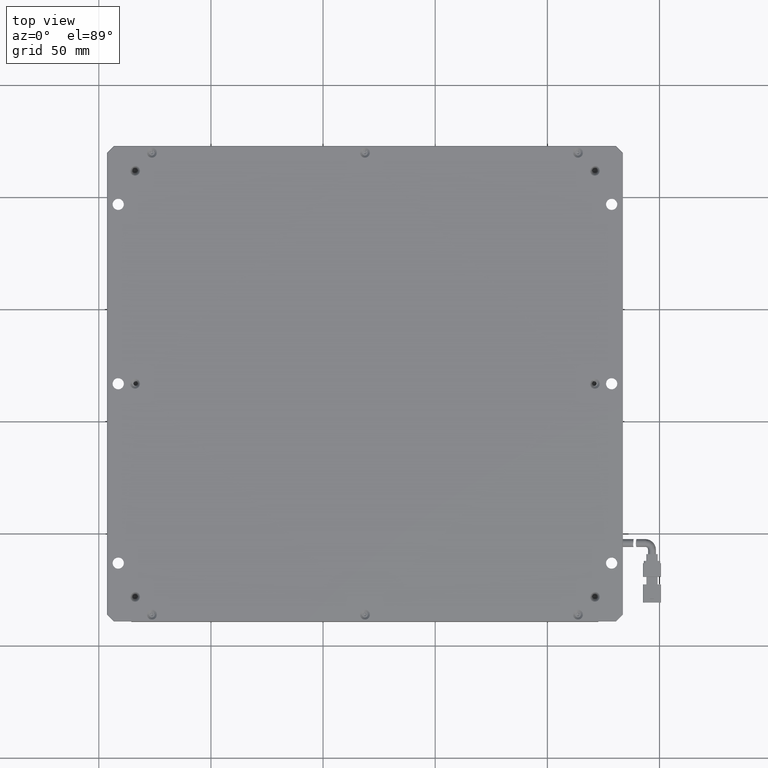
[diagram: clean part render]
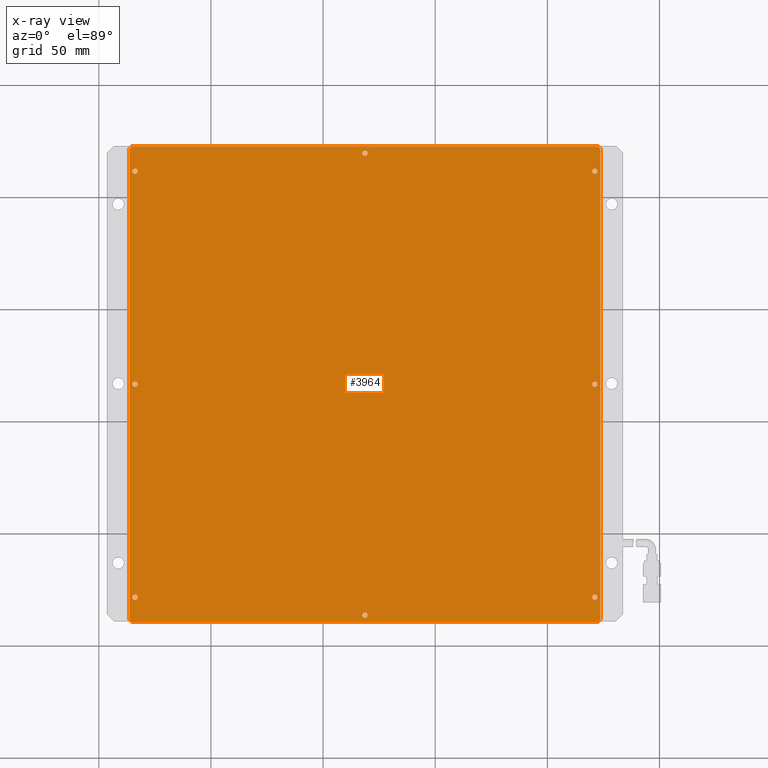
[diagram: x-ray — body ghosted, one internal face saturated and labeled with its STEP entity id]
A machine part, top view, then the same camera in x-ray: the body is ghosted and one INTERNAL B-rep face — a face not visible from any outside direction — is saturated and labeled: STEP entity #3964.
In plain terms, the highlighted planar face has unit normal (0, 0, -1).
Its self-contained STEP definition (entity closure, byte-faithful):
#4 = VERTEX_POINT ( 'NONE', #21319 ) ;
#84 = PLANE ( 'NONE',  #10973 ) ;
#127 = EDGE_CURVE ( 'NONE', #21207, #11545, #3713, .T. ) ;
#207 = ORIENTED_EDGE ( 'NONE', *, *, #2324, .F. ) ;
#365 = ORIENTED_EDGE ( 'NONE', *, *, #14349, .F. ) ;
#458 = CARTESIAN_POINT ( 'NONE',  ( -86.33424941752385000, -138.3787539827808400, -13.00000000002364500 ) ) ;
#491 = EDGE_LOOP ( 'NONE', ( #17542, #6930 ) ) ;
#540 = ORIENTED_EDGE ( 'NONE', *, *, #7297, .F. ) ;
#644 = AXIS2_PLACEMENT_3D ( 'NONE', #2061, #9437, #11169 ) ;
#785 = DIRECTION ( 'NONE',  ( -0.0000000000000000000, -0.0000000000000000000, 1.000000000000000000 ) ) ;
#798 = EDGE_CURVE ( 'NONE', #20414, #19845, #9162, .T. ) ;
#878 = DIRECTION ( 'NONE',  ( 1.000000000000000000, 0.0000000000000000000, 0.0000000000000000000 ) ) ;
#933 = FACE_BOUND ( 'NONE', #22066, .T. ) ;
#1193 = FACE_BOUND ( 'NONE', #8259, .T. ) ;
#1230 = AXIS2_PLACEMENT_3D ( 'NONE', #4122, #21245, #7559 ) ;
#1307 = ORIENTED_EDGE ( 'NONE', *, *, #6660, .F. ) ;
#1434 = CIRCLE ( 'NONE', #16487, 1.199999999999992600 ) ;
#1467 = CARTESIAN_POINT ( 'NONE',  ( 121.1657505824761500, -128.3787539827808100, -13.00000000002364500 ) ) ;
#1514 = EDGE_CURVE ( 'NONE', #9319, #11531, #12898, .T. ) ;
#1588 = DIRECTION ( 'NONE',  ( -0.0000000000000000000, -0.0000000000000000000, 1.000000000000000000 ) ) ;
#1750 = FACE_BOUND ( 'NONE', #491, .T. ) ;
#1878 = VECTOR ( 'NONE', #10986, 1000.000000000000000 ) ;
#1955 = AXIS2_PLACEMENT_3D ( 'NONE', #13266, #15007, #20400 ) ;
#1968 = CARTESIAN_POINT ( 'NONE',  ( 19.86575058247613900, -136.3787539827807800, -13.00000000002364500 ) ) ;
#1978 = AXIS2_PLACEMENT_3D ( 'NONE', #16757, #18547, #13225 ) ;
#2044 = EDGE_CURVE ( 'NONE', #13668, #18893, #10382, .T. ) ;
#2047 = AXIS2_PLACEMENT_3D ( 'NONE', #21700, #13224, #9476 ) ;
#2061 = CARTESIAN_POINT ( 'NONE',  ( -83.83424941752386400, 61.62124601721920000, -13.00000000002364500 ) ) ;
#2324 = EDGE_CURVE ( 'NONE', #16106, #20766, #3310, .T. ) ;
#2483 = ORIENTED_EDGE ( 'NONE', *, *, #7981, .F. ) ;
#2631 = EDGE_LOOP ( 'NONE', ( #9702, #365 ) ) ;
#2638 = CIRCLE ( 'NONE', #13916, 1.199999999999992600 ) ;
#2665 = CARTESIAN_POINT ( 'NONE',  ( 123.6657505824761400, -139.3787539827808400, -13.00000000002364500 ) ) ;
#2817 = CARTESIAN_POINT ( 'NONE',  ( -85.33424941752389300, 72.62124601721919200, -13.00000000002364500 ) ) ;
#2819 = DIRECTION ( 'NONE',  ( 0.0000000000000000000, -1.000000000000000000, 0.0000000000000000000 ) ) ;
#2936 = CARTESIAN_POINT ( 'NONE',  ( 123.6657505824761500, -138.3787539827808400, -13.00000000002364500 ) ) ;
#2960 = EDGE_CURVE ( 'NONE', #19621, #7441, #10603, .T. ) ;
#3239 = ORIENTED_EDGE ( 'NONE', *, *, #11713, .F. ) ;
#3310 = CIRCLE ( 'NONE', #644, 1.199999999999992600 ) ;
#3338 = CARTESIAN_POINT ( 'NONE',  ( 122.6657505824761800, -139.3787539827808100, -13.00000000002364500 ) ) ;
#3440 = CARTESIAN_POINT ( 'NONE',  ( 18.66575058247614600, 69.62124601721919200, -13.00000000002364500 ) ) ;
#3490 = CIRCLE ( 'NONE', #20524, 1.199999999999992600 ) ;
#3592 = VECTOR ( 'NONE', #2819, 1000.000000000000000 ) ;
#3631 = DIRECTION ( 'NONE',  ( 0.0000000000000000000, 0.0000000000000000000, -1.000000000000000000 ) ) ;
#3640 = AXIS2_PLACEMENT_3D ( 'NONE', #3440, #1588, #15659 ) ;
#3713 = CIRCLE ( 'NONE', #2047, 1.199999999999992600 ) ;
#3738 = CARTESIAN_POINT ( 'NONE',  ( -86.33424941752387800, 72.62124601721919200, -13.00000000002364500 ) ) ;
#3964 = ADVANCED_FACE ( 'NONE', ( #6433, #933, #20255, #1193, #13823, #14611, #9172, #1750, #4501 ), #84, .F. ) ;
#3965 = EDGE_CURVE ( 'NONE', #11545, #21207, #7503, .T. ) ;
#4122 = CARTESIAN_POINT ( 'NONE',  ( 18.66575058247614600, -136.3787539827807800, -13.00000000002364500 ) ) ;
#4203 = CARTESIAN_POINT ( 'NONE',  ( -83.83424941752386400, -128.3787539827808100, -13.00000000002364500 ) ) ;
#4287 = DIRECTION ( 'NONE',  ( -0.0000000000000000000, -0.0000000000000000000, 1.000000000000000000 ) ) ;
#4501 = FACE_BOUND ( 'NONE', #20303, .T. ) ;
#4524 = ORIENTED_EDGE ( 'NONE', *, *, #16328, .F. ) ;
#4672 = CIRCLE ( 'NONE', #8793, 1.199999999999992600 ) ;
#4866 = LINE ( 'NONE', #9912, #7046 ) ;
#5044 = CARTESIAN_POINT ( 'NONE',  ( 17.46575058247615400, 69.62124601721919200, -13.00000000002364500 ) ) ;
#5112 = CARTESIAN_POINT ( 'NONE',  ( 122.6657505824761200, -139.3787539827808400, -13.00000000002364500 ) ) ;
#5323 = DIRECTION ( 'NONE',  ( -0.0000000000000000000, -0.0000000000000000000, 1.000000000000000000 ) ) ;
#5514 = DIRECTION ( 'NONE',  ( -0.0000000000000000000, 1.000000000000000000, -0.0000000000000000000 ) ) ;
#5581 = EDGE_LOOP ( 'NONE', ( #7174, #21041 ) ) ;
#5655 = CARTESIAN_POINT ( 'NONE',  ( 123.6657505824761400, 72.62124601721919200, -13.00000000002364500 ) ) ;
#6198 = VERTEX_POINT ( 'NONE', #11804 ) ;
#6298 = VECTOR ( 'NONE', #5514, 1000.000000000000000 ) ;
#6433 = FACE_OUTER_BOUND ( 'NONE', #6512, .T. ) ;
#6473 = EDGE_CURVE ( 'NONE', #9319, #19845, #7963, .T. ) ;
#6498 = VERTEX_POINT ( 'NONE', #18045 ) ;
#6512 = EDGE_LOOP ( 'NONE', ( #16571, #540, #22331, #22520, #10871, #12066, #8823, #1307 ) ) ;
#6535 = DIRECTION ( 'NONE',  ( -0.0000000000000000000, -0.0000000000000000000, 1.000000000000000000 ) ) ;
#6660 = EDGE_CURVE ( 'NONE', #7040, #11531, #18544, .T. ) ;
#6685 = CARTESIAN_POINT ( 'NONE',  ( -85.03424941752385300, -33.37875398278074400, -13.00000000002364500 ) ) ;
#6716 = VERTEX_POINT ( 'NONE', #5044 ) ;
#6854 = AXIS2_PLACEMENT_3D ( 'NONE', #19036, #5323, #7043 ) ;
#6930 = ORIENTED_EDGE ( 'NONE', *, *, #3965, .F. ) ;
#7033 = EDGE_CURVE ( 'NONE', #20414, #16935, #17158, .T. ) ;
#7040 = VERTEX_POINT ( 'NONE', #20957 ) ;
#7043 = DIRECTION ( 'NONE',  ( 1.000000000000000000, 0.0000000000000000000, 0.0000000000000000000 ) ) ;
#7046 = VECTOR ( 'NONE', #14861, 1000.000000000000000 ) ;
#7049 = CIRCLE ( 'NONE', #20682, 1.199999999999992600 ) ;
#7174 = ORIENTED_EDGE ( 'NONE', *, *, #2044, .F. ) ;
#7297 = EDGE_CURVE ( 'NONE', #20131, #6498, #19018, .T. ) ;
#7340 = CIRCLE ( 'NONE', #17605, 1.199999999999992600 ) ;
#7441 = VERTEX_POINT ( 'NONE', #15114 ) ;
#7503 = CIRCLE ( 'NONE', #17223, 1.199999999999992600 ) ;
#7559 = DIRECTION ( 'NONE',  ( 1.000000000000000000, 0.0000000000000000000, 0.0000000000000000000 ) ) ;
#7963 = LINE ( 'NONE', #2665, #22302 ) ;
#7981 = EDGE_CURVE ( 'NONE', #10184, #6198, #7340, .T. ) ;
#8205 = DIRECTION ( 'NONE',  ( 1.000000000000000000, 0.0000000000000000000, 0.0000000000000000000 ) ) ;
#8259 = EDGE_LOOP ( 'NONE', ( #2483, #8332 ) ) ;
#8332 = ORIENTED_EDGE ( 'NONE', *, *, #13460, .F. ) ;
#8434 = DIRECTION ( 'NONE',  ( 1.000000000000000000, 0.0000000000000000000, 0.0000000000000000000 ) ) ;
#8780 = ORIENTED_EDGE ( 'NONE', *, *, #15611, .F. ) ;
#8793 = AXIS2_PLACEMENT_3D ( 'NONE', #11290, #785, #878 ) ;
#8823 = ORIENTED_EDGE ( 'NONE', *, *, #1514, .T. ) ;
#8836 = LINE ( 'NONE', #2817, #16180 ) ;
#9162 = LINE ( 'NONE', #458, #21565 ) ;
#9172 = FACE_BOUND ( 'NONE', #14804, .T. ) ;
#9319 = VERTEX_POINT ( 'NONE', #5112 ) ;
#9437 = DIRECTION ( 'NONE',  ( -0.0000000000000000000, -0.0000000000000000000, 1.000000000000000000 ) ) ;
#9476 = DIRECTION ( 'NONE',  ( 1.000000000000000000, 0.0000000000000000000, 0.0000000000000000000 ) ) ;
#9563 = DIRECTION ( 'NONE',  ( -0.7071067811865378000, -0.7071067811865573400, 0.0000000000000000000 ) ) ;
#9702 = ORIENTED_EDGE ( 'NONE', *, *, #2960, .F. ) ;
#9912 = CARTESIAN_POINT ( 'NONE',  ( 123.6657505824761400, 71.62124601721922100, -13.00000000002364500 ) ) ;
#10159 = DIRECTION ( 'NONE',  ( 1.000000000000000000, 0.0000000000000000000, 0.0000000000000000000 ) ) ;
#10184 = VERTEX_POINT ( 'NONE', #14755 ) ;
#10382 = CIRCLE ( 'NONE', #1955, 1.199999999999992600 ) ;
#10603 = CIRCLE ( 'NONE', #6854, 1.199999999999992600 ) ;
#10871 = ORIENTED_EDGE ( 'NONE', *, *, #798, .T. ) ;
#10917 = VERTEX_POINT ( 'NONE', #14808 ) ;
#10973 = AXIS2_PLACEMENT_3D ( 'NONE', #17461, #3631, #12472 ) ;
#10986 = DIRECTION ( 'NONE',  ( 1.000000000000000000, 0.0000000000000000000, 0.0000000000000000000 ) ) ;
#11042 = CIRCLE ( 'NONE', #17322, 1.199999999999992600 ) ;
#11169 = DIRECTION ( 'NONE',  ( 1.000000000000000000, 0.0000000000000000000, 0.0000000000000000000 ) ) ;
#11233 = DIRECTION ( 'NONE',  ( 1.000000000000000000, 0.0000000000000000000, 0.0000000000000000000 ) ) ;
#11290 = CARTESIAN_POINT ( 'NONE',  ( -83.83424941752386400, 61.62124601721920000, -13.00000000002364500 ) ) ;
#11326 = DIRECTION ( 'NONE',  ( 1.000000000000000000, 0.0000000000000000000, 0.0000000000000000000 ) ) ;
#11416 = EDGE_CURVE ( 'NONE', #7040, #6498, #4866, .T. ) ;
#11531 = VERTEX_POINT ( 'NONE', #2936 ) ;
#11545 = VERTEX_POINT ( 'NONE', #6685 ) ;
#11713 = EDGE_CURVE ( 'NONE', #14659, #4, #7049, .T. ) ;
#11804 = CARTESIAN_POINT ( 'NONE',  ( 119.9657505824761600, -128.3787539827808100, -13.00000000002364500 ) ) ;
#11885 = DIRECTION ( 'NONE',  ( 1.000000000000000000, 0.0000000000000000000, 0.0000000000000000000 ) ) ;
#12066 = ORIENTED_EDGE ( 'NONE', *, *, #6473, .F. ) ;
#12142 = DIRECTION ( 'NONE',  ( 0.7071067811865378000, 0.7071067811865573400, 0.0000000000000000000 ) ) ;
#12151 = CARTESIAN_POINT ( 'NONE',  ( -82.63424941752387600, 61.62124601721920000, -13.00000000002364500 ) ) ;
#12323 = DIRECTION ( 'NONE',  ( -0.0000000000000000000, -0.0000000000000000000, 1.000000000000000000 ) ) ;
#12472 = DIRECTION ( 'NONE',  ( 1.000000000000000000, 0.0000000000000000000, 0.0000000000000000000 ) ) ;
#12608 = CIRCLE ( 'NONE', #18582, 1.199999999999992600 ) ;
#12707 = VERTEX_POINT ( 'NONE', #21239 ) ;
#12898 = LINE ( 'NONE', #3338, #15624 ) ;
#13224 = DIRECTION ( 'NONE',  ( -0.0000000000000000000, -0.0000000000000000000, 1.000000000000000000 ) ) ;
#13225 = DIRECTION ( 'NONE',  ( 1.000000000000000000, 0.0000000000000000000, 0.0000000000000000000 ) ) ;
#13266 = CARTESIAN_POINT ( 'NONE',  ( 121.1657505824761500, 61.62124601721920000, -13.00000000002364500 ) ) ;
#13297 = CARTESIAN_POINT ( 'NONE',  ( -85.33424941752389300, -139.3787539827807800, -13.00000000002364500 ) ) ;
#13363 = CIRCLE ( 'NONE', #1230, 1.199999999999992600 ) ;
#13384 = DIRECTION ( 'NONE',  ( -0.0000000000000000000, -0.0000000000000000000, 1.000000000000000000 ) ) ;
#13460 = EDGE_CURVE ( 'NONE', #6198, #10184, #12608, .T. ) ;
#13668 = VERTEX_POINT ( 'NONE', #17309 ) ;
#13744 = EDGE_LOOP ( 'NONE', ( #18500, #3239 ) ) ;
#13823 = FACE_BOUND ( 'NONE', #13744, .T. ) ;
#13916 = AXIS2_PLACEMENT_3D ( 'NONE', #16914, #13384, #10159 ) ;
#14047 = CARTESIAN_POINT ( 'NONE',  ( 119.9657505824761600, -33.37875398278074400, -13.00000000002364500 ) ) ;
#14160 = DIRECTION ( 'NONE',  ( 1.000000000000000000, 0.0000000000000000000, 0.0000000000000000000 ) ) ;
#14349 = EDGE_CURVE ( 'NONE', #7441, #19621, #13363, .T. ) ;
#14526 = DIRECTION ( 'NONE',  ( -0.0000000000000000000, -0.0000000000000000000, 1.000000000000000000 ) ) ;
#14542 = CARTESIAN_POINT ( 'NONE',  ( -85.03424941752385300, -128.3787539827808100, -13.00000000002364500 ) ) ;
#14611 = FACE_BOUND ( 'NONE', #5581, .T. ) ;
#14659 = VERTEX_POINT ( 'NONE', #14047 ) ;
#14674 = DIRECTION ( 'NONE',  ( -1.000000000000000000, -0.0000000000000000000, -0.0000000000000000000 ) ) ;
#14755 = CARTESIAN_POINT ( 'NONE',  ( 122.3657505824761500, -128.3787539827808100, -13.00000000002364500 ) ) ;
#14804 = EDGE_LOOP ( 'NONE', ( #8780, #22243 ) ) ;
#14808 = CARTESIAN_POINT ( 'NONE',  ( 19.86575058247613900, 69.62124601721919200, -13.00000000002364500 ) ) ;
#14861 = DIRECTION ( 'NONE',  ( -0.7071067811865573400, 0.7071067811865378000, -0.0000000000000000000 ) ) ;
#15007 = DIRECTION ( 'NONE',  ( -0.0000000000000000000, -0.0000000000000000000, 1.000000000000000000 ) ) ;
#15114 = CARTESIAN_POINT ( 'NONE',  ( 17.46575058247615400, -136.3787539827807800, -13.00000000002364500 ) ) ;
#15250 = EDGE_CURVE ( 'NONE', #6716, #10917, #11042, .T. ) ;
#15450 = CARTESIAN_POINT ( 'NONE',  ( -86.33424941752386400, 71.62124601721917800, -13.00000000002364500 ) ) ;
#15475 = ORIENTED_EDGE ( 'NONE', *, *, #20404, .F. ) ;
#15611 = EDGE_CURVE ( 'NONE', #12707, #17463, #1434, .T. ) ;
#15615 = CARTESIAN_POINT ( 'NONE',  ( 119.9657505824761600, 61.62124601721920000, -13.00000000002364500 ) ) ;
#15624 = VECTOR ( 'NONE', #12142, 1000.000000000000000 ) ;
#15659 = DIRECTION ( 'NONE',  ( 1.000000000000000000, 0.0000000000000000000, 0.0000000000000000000 ) ) ;
#15787 = CARTESIAN_POINT ( 'NONE',  ( -86.33424941752386400, -138.3787539827807800, -13.00000000002364500 ) ) ;
#15868 = EDGE_CURVE ( 'NONE', #20131, #16935, #8836, .T. ) ;
#16106 = VERTEX_POINT ( 'NONE', #12151 ) ;
#16180 = VECTOR ( 'NONE', #9563, 1000.000000000000000 ) ;
#16204 = CARTESIAN_POINT ( 'NONE',  ( -82.63424941752387600, -33.37875398278074400, -13.00000000002364500 ) ) ;
#16328 = EDGE_CURVE ( 'NONE', #20766, #16106, #4672, .T. ) ;
#16487 = AXIS2_PLACEMENT_3D ( 'NONE', #4203, #14526, #11233 ) ;
#16571 = ORIENTED_EDGE ( 'NONE', *, *, #11416, .T. ) ;
#16585 = CARTESIAN_POINT ( 'NONE',  ( -85.03424941752385300, 61.62124601721920000, -13.00000000002364500 ) ) ;
#16757 = CARTESIAN_POINT ( 'NONE',  ( 121.1657505824761500, -33.37875398278074400, -13.00000000002364500 ) ) ;
#16914 = CARTESIAN_POINT ( 'NONE',  ( 121.1657505824761500, 61.62124601721920000, -13.00000000002364500 ) ) ;
#16935 = VERTEX_POINT ( 'NONE', #15450 ) ;
#16949 = CARTESIAN_POINT ( 'NONE',  ( 121.1657505824761500, -128.3787539827808100, -13.00000000002364500 ) ) ;
#17022 = DIRECTION ( 'NONE',  ( -0.0000000000000000000, -0.0000000000000000000, 1.000000000000000000 ) ) ;
#17158 = LINE ( 'NONE', #3738, #6298 ) ;
#17223 = AXIS2_PLACEMENT_3D ( 'NONE', #17544, #12323, #14160 ) ;
#17309 = CARTESIAN_POINT ( 'NONE',  ( 122.3657505824761500, 61.62124601721920000, -13.00000000002364500 ) ) ;
#17322 = AXIS2_PLACEMENT_3D ( 'NONE', #22183, #18589, #8205 ) ;
#17461 = CARTESIAN_POINT ( 'NONE',  ( 123.6657505824761400, 72.62124601721919200, -13.00000000002364500 ) ) ;
#17463 = VERTEX_POINT ( 'NONE', #14542 ) ;
#17542 = ORIENTED_EDGE ( 'NONE', *, *, #127, .F. ) ;
#17544 = CARTESIAN_POINT ( 'NONE',  ( -83.83424941752386400, -33.37875398278074400, -13.00000000002364500 ) ) ;
#17605 = AXIS2_PLACEMENT_3D ( 'NONE', #16949, #6535, #8434 ) ;
#18045 = CARTESIAN_POINT ( 'NONE',  ( 122.6657505824761200, 72.62124601721919200, -13.00000000002364500 ) ) ;
#18114 = CARTESIAN_POINT ( 'NONE',  ( -85.33424941752390700, 72.62124601721917800, -13.00000000002364500 ) ) ;
#18133 = ORIENTED_EDGE ( 'NONE', *, *, #15250, .F. ) ;
#18500 = ORIENTED_EDGE ( 'NONE', *, *, #19805, .F. ) ;
#18544 = LINE ( 'NONE', #22086, #3592 ) ;
#18547 = DIRECTION ( 'NONE',  ( -0.0000000000000000000, -0.0000000000000000000, 1.000000000000000000 ) ) ;
#18582 = AXIS2_PLACEMENT_3D ( 'NONE', #1467, #17022, #11885 ) ;
#18589 = DIRECTION ( 'NONE',  ( -0.0000000000000000000, -0.0000000000000000000, 1.000000000000000000 ) ) ;
#18893 = VERTEX_POINT ( 'NONE', #15615 ) ;
#19018 = LINE ( 'NONE', #5655, #1878 ) ;
#19036 = CARTESIAN_POINT ( 'NONE',  ( 18.66575058247614600, -136.3787539827807800, -13.00000000002364500 ) ) ;
#19123 = CARTESIAN_POINT ( 'NONE',  ( 121.1657505824761500, -33.37875398278074400, -13.00000000002364500 ) ) ;
#19268 = DIRECTION ( 'NONE',  ( 0.7071067811865573400, -0.7071067811865378000, 0.0000000000000000000 ) ) ;
#19476 = DIRECTION ( 'NONE',  ( 1.000000000000000000, 0.0000000000000000000, 0.0000000000000000000 ) ) ;
#19621 = VERTEX_POINT ( 'NONE', #1968 ) ;
#19805 = EDGE_CURVE ( 'NONE', #4, #14659, #21051, .T. ) ;
#19845 = VERTEX_POINT ( 'NONE', #13297 ) ;
#19918 = CIRCLE ( 'NONE', #3640, 1.199999999999992600 ) ;
#20131 = VERTEX_POINT ( 'NONE', #18114 ) ;
#20255 = FACE_BOUND ( 'NONE', #2631, .T. ) ;
#20303 = EDGE_LOOP ( 'NONE', ( #207, #4524 ) ) ;
#20400 = DIRECTION ( 'NONE',  ( 1.000000000000000000, 0.0000000000000000000, 0.0000000000000000000 ) ) ;
#20404 = EDGE_CURVE ( 'NONE', #10917, #6716, #19918, .T. ) ;
#20414 = VERTEX_POINT ( 'NONE', #15787 ) ;
#20524 = AXIS2_PLACEMENT_3D ( 'NONE', #21718, #4287, #11326 ) ;
#20682 = AXIS2_PLACEMENT_3D ( 'NONE', #19123, #22563, #19476 ) ;
#20766 = VERTEX_POINT ( 'NONE', #16585 ) ;
#20957 = CARTESIAN_POINT ( 'NONE',  ( 123.6657505824761400, 71.62124601721922100, -13.00000000002364500 ) ) ;
#21041 = ORIENTED_EDGE ( 'NONE', *, *, #21770, .F. ) ;
#21051 = CIRCLE ( 'NONE', #1978, 1.199999999999992600 ) ;
#21207 = VERTEX_POINT ( 'NONE', #16204 ) ;
#21239 = CARTESIAN_POINT ( 'NONE',  ( -82.63424941752387600, -128.3787539827808100, -13.00000000002364500 ) ) ;
#21245 = DIRECTION ( 'NONE',  ( -0.0000000000000000000, -0.0000000000000000000, 1.000000000000000000 ) ) ;
#21319 = CARTESIAN_POINT ( 'NONE',  ( 122.3657505824761500, -33.37875398278074400, -13.00000000002364500 ) ) ;
#21565 = VECTOR ( 'NONE', #19268, 1000.000000000000000 ) ;
#21700 = CARTESIAN_POINT ( 'NONE',  ( -83.83424941752386400, -33.37875398278074400, -13.00000000002364500 ) ) ;
#21702 = EDGE_CURVE ( 'NONE', #17463, #12707, #3490, .T. ) ;
#21718 = CARTESIAN_POINT ( 'NONE',  ( -83.83424941752386400, -128.3787539827808100, -13.00000000002364500 ) ) ;
#21770 = EDGE_CURVE ( 'NONE', #18893, #13668, #2638, .T. ) ;
#22066 = EDGE_LOOP ( 'NONE', ( #15475, #18133 ) ) ;
#22086 = CARTESIAN_POINT ( 'NONE',  ( 123.6657505824761400, 72.62124601721919200, -13.00000000002364500 ) ) ;
#22183 = CARTESIAN_POINT ( 'NONE',  ( 18.66575058247614600, 69.62124601721919200, -13.00000000002364500 ) ) ;
#22243 = ORIENTED_EDGE ( 'NONE', *, *, #21702, .F. ) ;
#22302 = VECTOR ( 'NONE', #14674, 1000.000000000000000 ) ;
#22331 = ORIENTED_EDGE ( 'NONE', *, *, #15868, .T. ) ;
#22520 = ORIENTED_EDGE ( 'NONE', *, *, #7033, .F. ) ;
#22563 = DIRECTION ( 'NONE',  ( -0.0000000000000000000, -0.0000000000000000000, 1.000000000000000000 ) ) ;